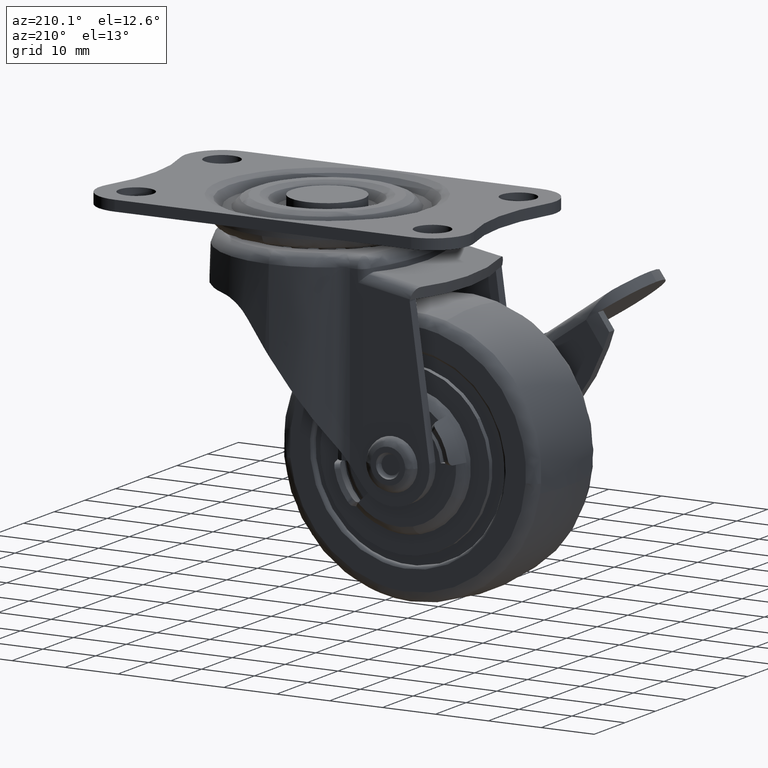
[diagram: clean part render]
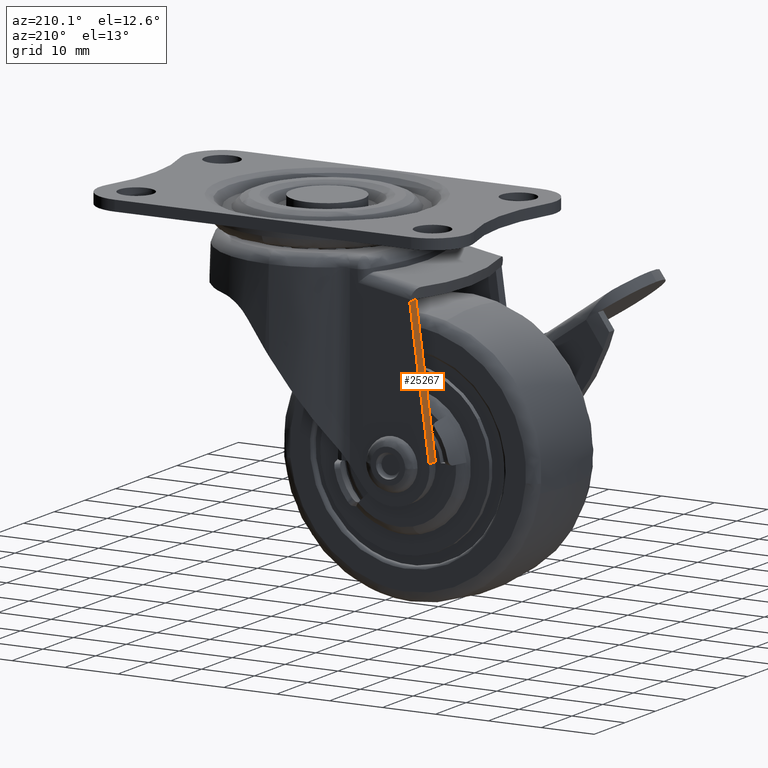
[diagram: same view with one face highlighted and labeled with its STEP entity id]
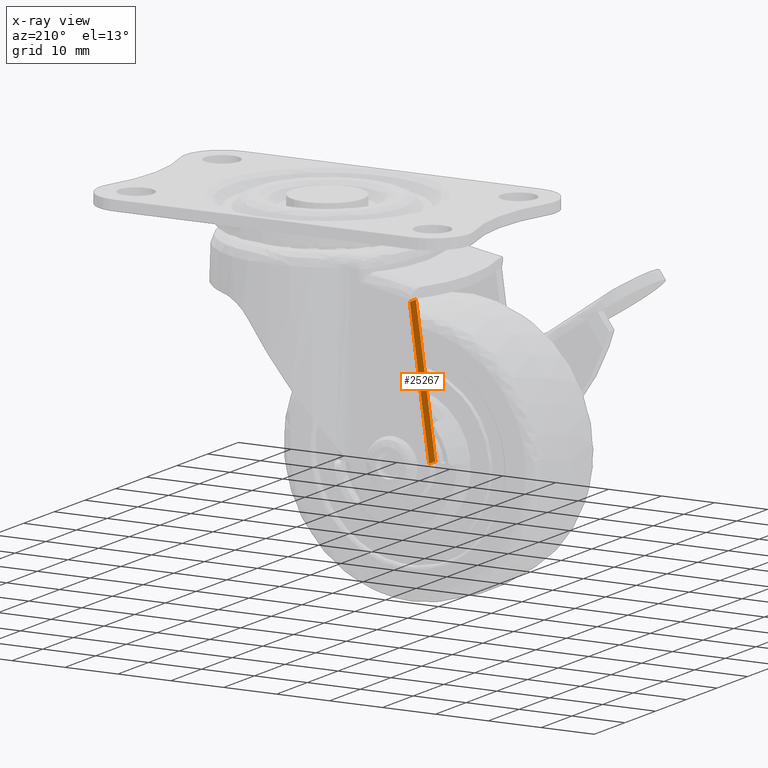
[diagram: x-ray of the same camera — body ghosted, the highlighted face saturated]
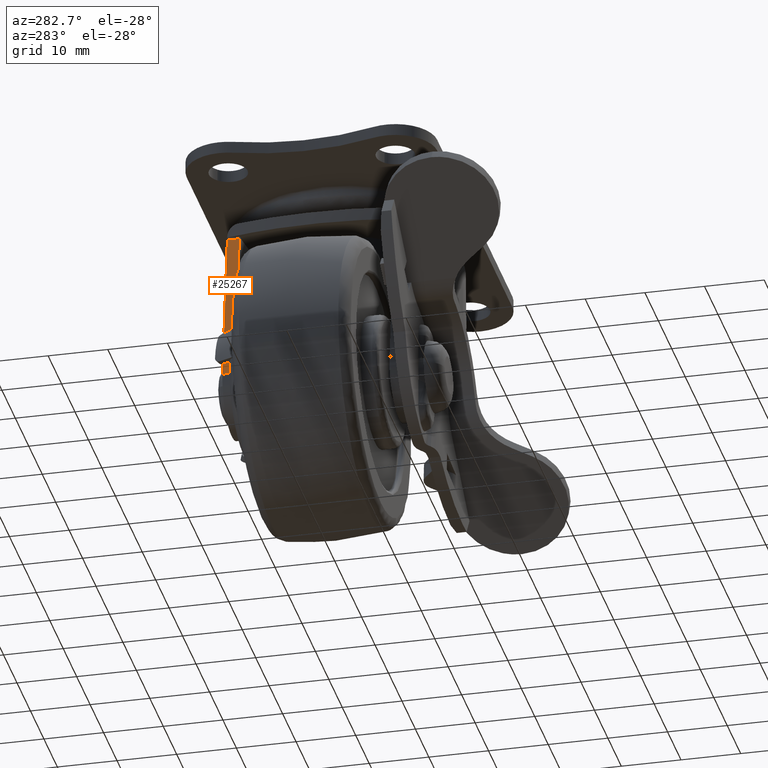
[diagram: same view with one face highlighted and labeled with its STEP entity id]
A machine part, auxiliary view. The second image highlights one B-rep face of the part: STEP entity #25267.
The next image is the same camera in x-ray: the body ghosted, the highlighted face saturated — about 0% of this face is hidden behind the body in this view.
A second angle (auxiliary view) of the same face is appended — the face is thin or edge-on in the first view.
In plain terms, the highlighted face is a freeform B-spline surface patch.
Its self-contained STEP definition (entity closure, byte-faithful):
#24321=CARTESIAN_POINT('',(-3.268058092038730,12.999985000000040,27.584851076363901));
#24322=VERTEX_POINT('',#24321);
#24331=CARTESIAN_POINT('',(-3.268058092038730,14.999985000000040,27.584851076363901));
#24332=VERTEX_POINT('',#24331);
#24340=CARTESIAN_POINT('',(-3.268058092038730,12.999985000000040,27.584851076363901));
#24341=CARTESIAN_POINT('',(-3.268058092038730,14.999985000000040,27.584851076363901));
#24342=QUASI_UNIFORM_CURVE('',1,(#24340,#24341),.UNSPECIFIED.,.F.,.U.);
#24343=EDGE_CURVE('',#24322,#24332,#24342,.T.);
#25127=CARTESIAN_POINT('',(-6.935061790085940,14.999985000000001,0.851273763320094));
#25128=VERTEX_POINT('',#25127);
#25148=CARTESIAN_POINT('',(-6.935061790085940,12.999985000000001,0.851273763320094));
#25149=VERTEX_POINT('',#25148);
#25171=CARTESIAN_POINT('',(-6.935061790085940,14.999985000000001,0.851273763320094));
#25172=CARTESIAN_POINT('',(-6.935061790085940,12.999985000000001,0.851273763320094));
#25173=QUASI_UNIFORM_CURVE('',1,(#25171,#25172),.UNSPECIFIED.,.F.,.U.);
#25174=EDGE_CURVE('',#25128,#25149,#25173,.T.);
#25248=CARTESIAN_POINT('',(-7.118228604594926,12.900084736548660,-0.484068276140466));
#25249=CARTESIAN_POINT('',(-3.084891441457603,12.900084736548660,28.920191920740429));
#25250=CARTESIAN_POINT('',(-7.118228604594926,15.099884762772369,-0.484068276140466));
#25251=CARTESIAN_POINT('',(-3.084891441457603,15.099884762772369,28.920191920740429));
#25252=B_SPLINE_SURFACE_WITH_KNOTS('',1,1,((#25248,#25250),(#25249,#25251)),.UNSPECIFIED.,.F.,.F.,.U.,(2,2),(2,2),(0.0,29.679594444625060),(0.0,2.199800026223706),.UNSPECIFIED.);
#25253=CARTESIAN_POINT('',(-3.268058092038730,12.999985000000040,27.584851076363901));
#25254=CARTESIAN_POINT('',(-6.935061790085940,12.999985000000001,0.851273763320094));
#25255=QUASI_UNIFORM_CURVE('',1,(#25253,#25254),.UNSPECIFIED.,.F.,.U.);
#25256=EDGE_CURVE('',#24322,#25149,#25255,.T.);
#25257=ORIENTED_EDGE('',*,*,#25256,.F.);
#25258=ORIENTED_EDGE('',*,*,#24343,.T.);
#25259=CARTESIAN_POINT('',(-3.268058092038730,14.999985000000040,27.584851076363901));
#25260=CARTESIAN_POINT('',(-6.935061790085940,14.999985000000001,0.851273763320094));
#25261=QUASI_UNIFORM_CURVE('',1,(#25259,#25260),.UNSPECIFIED.,.F.,.U.);
#25262=EDGE_CURVE('',#24332,#25128,#25261,.T.);
#25263=ORIENTED_EDGE('',*,*,#25262,.T.);
#25264=ORIENTED_EDGE('',*,*,#25174,.T.);
#25265=EDGE_LOOP('',(#25257,#25258,#25263,#25264));
#25266=FACE_OUTER_BOUND('',#25265,.T.);
#25267=ADVANCED_FACE('',(#25266),#25252,.T.);